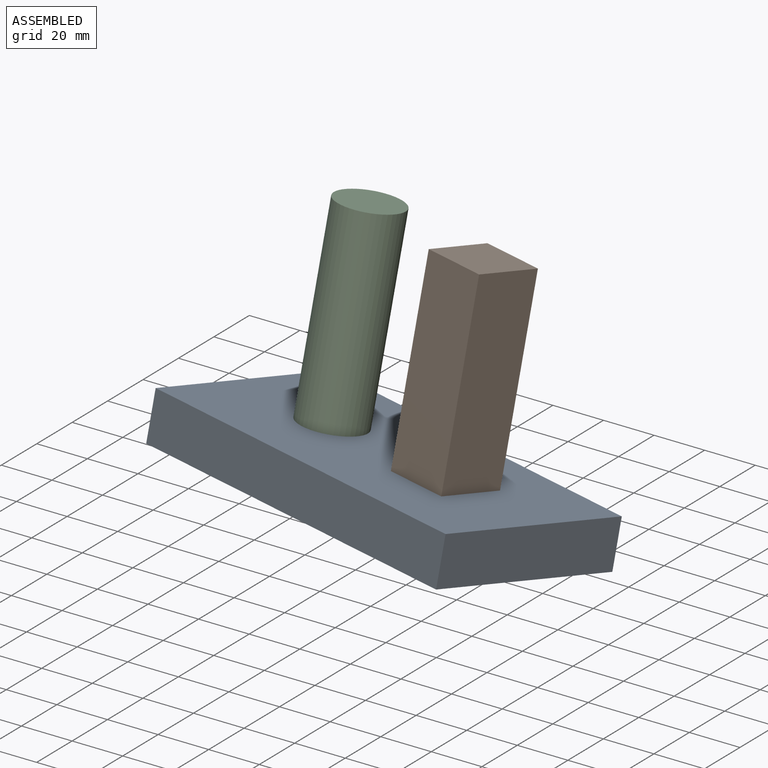
[diagram: assembled view]
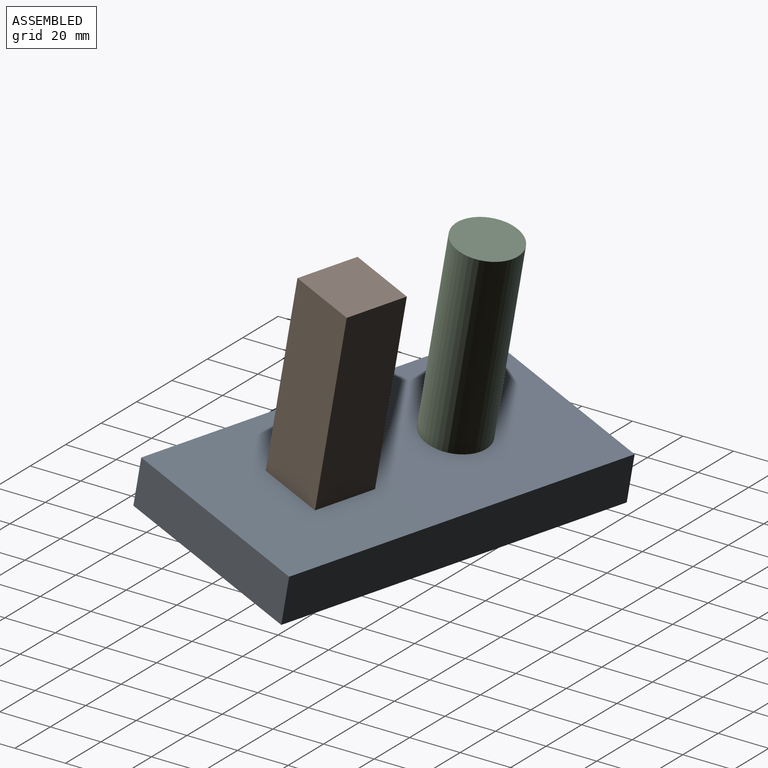
[diagram: assembled view, second angle]
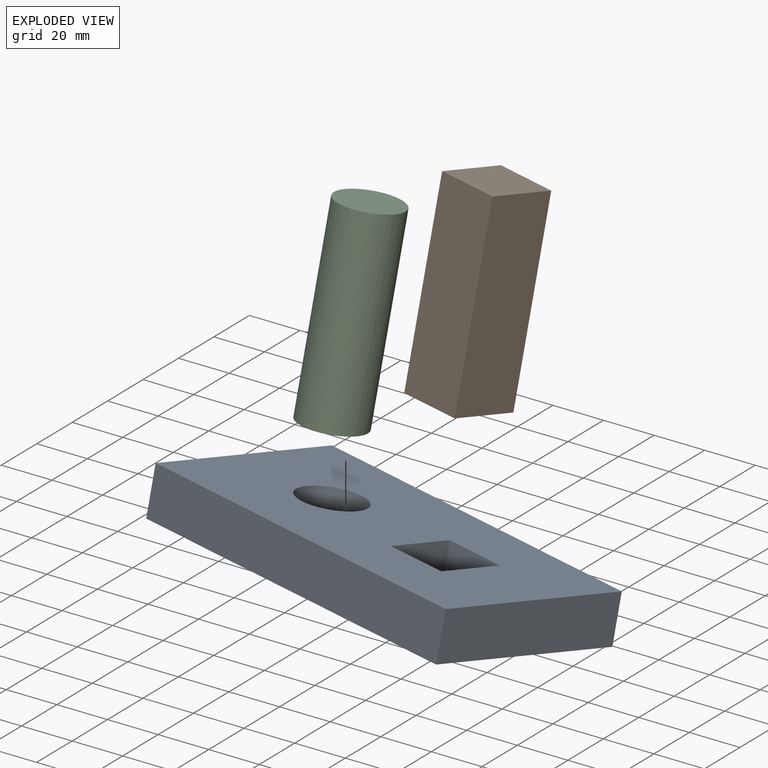
[diagram: exploded view]
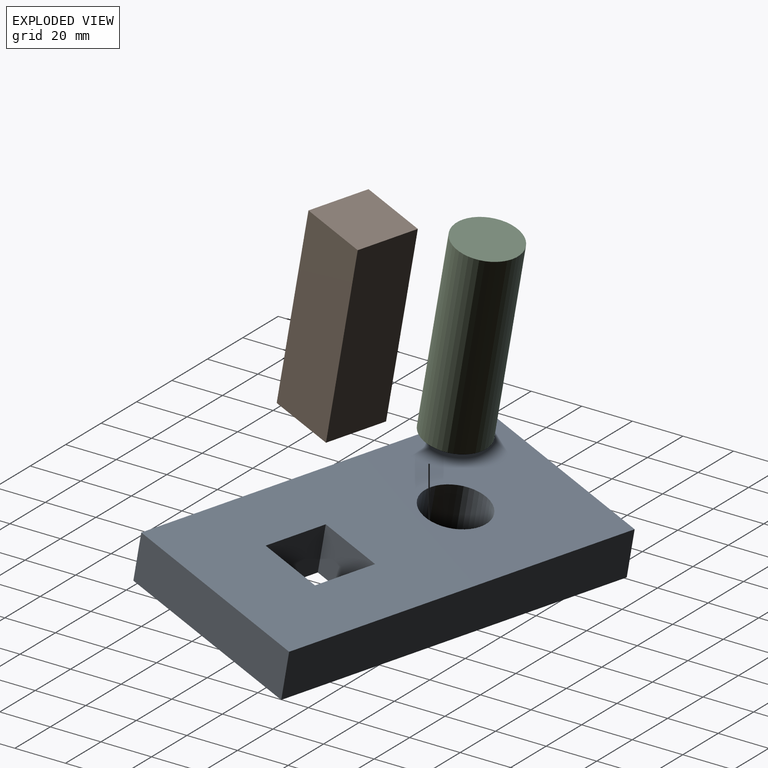
[diagram: exploded view, second angle]
ASSEMBLY  parts=3 mates=2
PART A: 11 faces, bbox 146.1x19.1x76.2 mm
  f0: plane 146.05x76.2mm, normal (0,-1,0), area 9977.1mm2, adj f2,f3,f4,f5,f6,f7,f8,f9
  f1: plane 146.05x76.2mm, normal (0,1,0), area 9977.1mm2, adj f2,f3,f4,f5,f6,f7,f8,f9
  f2: plane 76.2x19.05mm, normal (-1,0,0), area 1451.6mm2, adj f0,f1,f3,f5
  f3: plane 146.05x19.05mm, normal (0,0,-1), area 2782.3mm2, adj f0,f1,f2,f4
  f4: plane 76.2x19.05mm, normal (1,0,0), area 1451.6mm2, adj f0,f1,f3,f5
  f5: plane 146.05x19.05mm, normal (0,0,1), area 2782.3mm2, adj f0,f1,f2,f4
  f6: cylinder r=12.7mm len=25.4mm, axis (0,-1,0), area 1520.1mm2, adj f0,f1
  f7: plane 25.4x19.05mm, normal (1,0,0), area 483.9mm2, adj f0,f1,f8,f10
  f8: plane 25.4x19.05mm, normal (0,0,1), area 483.9mm2, adj f0,f1,f7,f9
  f9: plane 25.4x19.05mm, normal (-1,0,0), area 483.9mm2, adj f0,f1,f8,f10
  f10: plane 25.4x19.05mm, normal (0,0,-1), area 483.9mm2, adj f0,f1,f7,f9
PART B: 6 faces, bbox 25.4x76.2x25.4 mm
  f0: plane 76.2x25.4mm, normal (-1,0,0), area 1935.5mm2, adj f1,f3,f4,f5
  f1: plane 76.2x25.4mm, normal (0,0,-1), area 1935.5mm2, adj f0,f2,f4,f5
  f2: plane 76.2x25.4mm, normal (1,0,0), area 1935.5mm2, adj f1,f3,f4,f5
  f3: plane 76.2x25.4mm, normal (0,0,1), area 1935.5mm2, adj f0,f2,f4,f5
  f4: plane 25.4x25.4mm, normal (0,-1,0), area 645.2mm2, adj f0,f1,f2,f3
  f5: plane 25.4x25.4mm, normal (0,1,0), area 645.2mm2, adj f0,f1,f2,f3
PART C: 3 faces, bbox 25.4x76.2x25.4 mm
  f0: cylinder r=12.7mm len=76.2mm, axis (0,1,0), area 6080.5mm2, adj f1,f2
  f1: plane 25.4x25.4mm, normal (0,-1,0), area 506.7mm2, adj f0
  f2: plane 25.4x25.4mm, normal (0,1,0), area 506.7mm2, adj f0
PLACE A rot(axis=(-0.99,0.13,-0.1),102.9deg) t=(105.72,59.38,91.22)mm fixed
PLACE B rot(axis=(0.98,-0.13,-0.16),79.1deg) t=(209.63,103.67,173.68)mm
PLACE C rot(axis=(0.98,-0.13,-0.16),79.1deg) t=(163.48,103.18,176.35)mm
MATE planar B.f4 <-> A.f0  axis (-0.05,-0.2,-0.98) through (214.54,72.93,101.85)mm
MATE slider C.f0 <-> A.f6  axis (-0.05,-0.2,-0.98) through (159.34,87.72,101.85)mm
